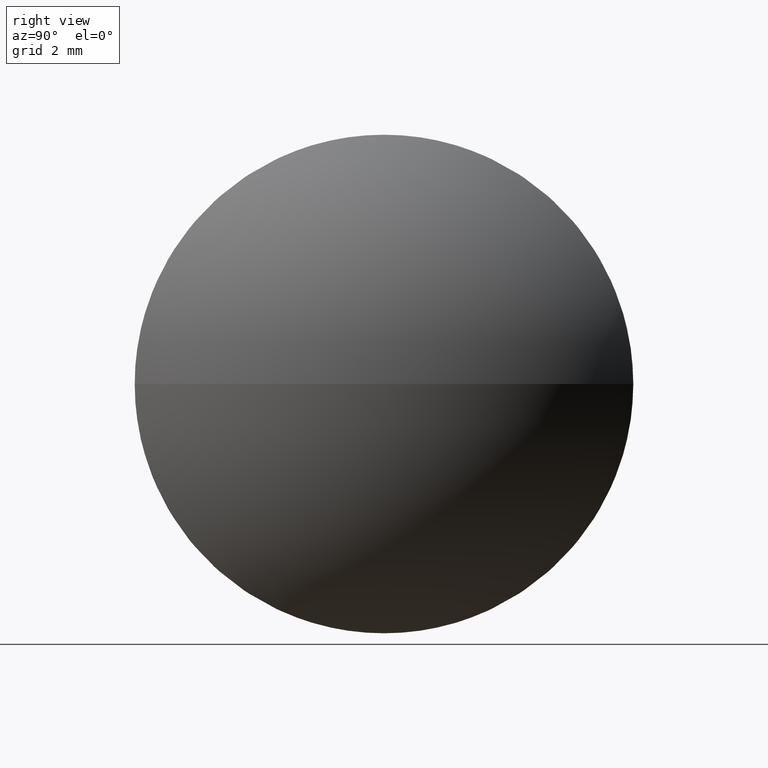
[diagram: clean part render]
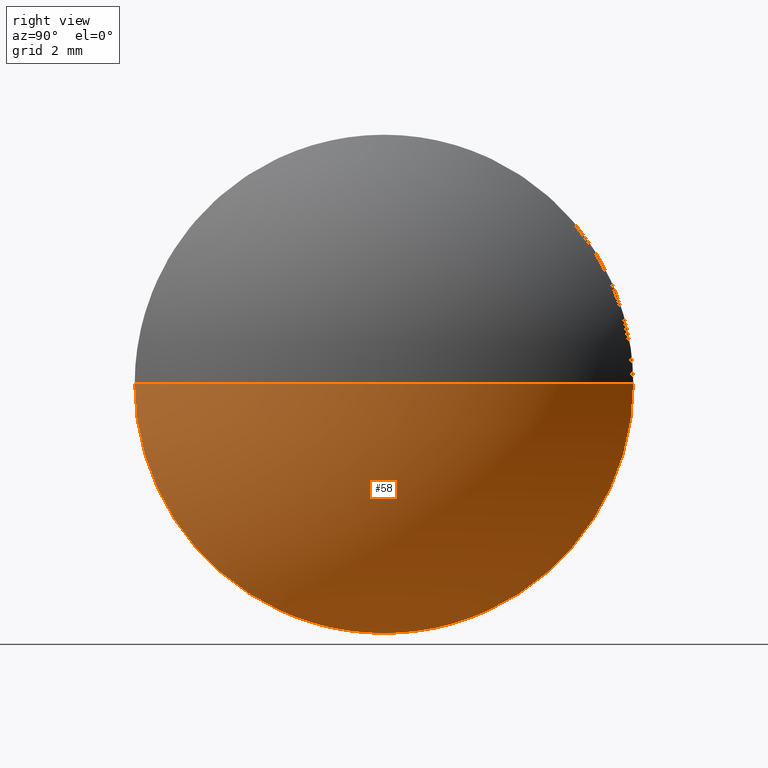
[diagram: same view with one face highlighted and labeled with its STEP entity id]
A machine part, right view. The second image highlights one B-rep face of the part: STEP entity #58.
In plain terms, the highlighted spherical surface has radius 6.4593 mm.
Its self-contained STEP definition (entity closure, byte-faithful):
#5 = SPHERICAL_SURFACE ( 'NONE', #159, 6.459261603375520800 ) ;
#8 = CARTESIAN_POINT ( 'NONE',  ( 537.4396273029952900, 129.3762019213367000, -6.123233995736764300E-016 ) ) ;
#10 = AXIS2_PLACEMENT_3D ( 'NONE', #184, #119, #65 ) ;
#11 = CIRCLE ( 'NONE', #147, 6.459261603375510100 ) ;
#12 = VERTEX_POINT ( 'NONE', #8 ) ;
#18 = DIRECTION ( 'NONE',  ( 0.0000000000000000000, 1.224646799147353200E-016, -1.000000000000000000 ) ) ;
#19 = VERTEX_POINT ( 'NONE', #22 ) ;
#22 = CARTESIAN_POINT ( 'NONE',  ( 537.4396273029952900, 139.3762019213367000, 0.0000000000000000000 ) ) ;
#23 = DIRECTION ( 'NONE',  ( 0.0000000000000000000, 1.000000000000000000, 0.0000000000000000000 ) ) ;
#28 = CIRCLE ( 'NONE', #10, 6.459261603375510100 ) ;
#33 = ORIENTED_EDGE ( 'NONE', *, *, #61, .F. ) ;
#43 = CARTESIAN_POINT ( 'NONE',  ( 537.4396273029952900, 134.3762019213367000, 0.0000000000000000000 ) ) ;
#44 = DIRECTION ( 'NONE',  ( -1.000000000000000000, -0.0000000000000000000, -0.0000000000000000000 ) ) ;
#45 = EDGE_CURVE ( 'NONE', #19, #139, #186, .T. ) ;
#58 = ADVANCED_FACE ( 'NONE', ( #70 ), #5, .T. ) ;
#60 = EDGE_LOOP ( 'NONE', ( #99, #146, #33, #77 ) ) ;
#61 = EDGE_CURVE ( 'NONE', #139, #12, #106, .T. ) ;
#65 = DIRECTION ( 'NONE',  ( 1.000000000000000000, 0.0000000000000000000, 0.0000000000000000000 ) ) ;
#70 = FACE_OUTER_BOUND ( 'NONE', #60, .T. ) ;
#77 = ORIENTED_EDGE ( 'NONE', *, *, #45, .F. ) ;
#80 = DIRECTION ( 'NONE',  ( 0.0000000000000000000, 1.000000000000000000, 1.224646799147355200E-016 ) ) ;
#83 = AXIS2_PLACEMENT_3D ( 'NONE', #43, #44, #91 ) ;
#84 = DIRECTION ( 'NONE',  ( -1.000000000000000000, -0.0000000000000000000, -0.0000000000000000000 ) ) ;
#91 = DIRECTION ( 'NONE',  ( 0.0000000000000000000, 0.0000000000000000000, 1.000000000000000000 ) ) ;
#92 = AXIS2_PLACEMENT_3D ( 'NONE', #140, #84, #167 ) ;
#99 = ORIENTED_EDGE ( 'NONE', *, *, #104, .F. ) ;
#104 = EDGE_CURVE ( 'NONE', #122, #19, #28, .T. ) ;
#106 = CIRCLE ( 'NONE', #83, 5.000000000000004400 ) ;
#119 = DIRECTION ( 'NONE',  ( -0.0000000000000000000, 0.0000000000000000000, 1.000000000000000000 ) ) ;
#122 = VERTEX_POINT ( 'NONE', #183 ) ;
#134 = EDGE_CURVE ( 'NONE', #122, #12, #11, .T. ) ;
#139 = VERTEX_POINT ( 'NONE', #152 ) ;
#140 = CARTESIAN_POINT ( 'NONE',  ( 537.4396273029952900, 134.3762019213367000, 0.0000000000000000000 ) ) ;
#144 = CARTESIAN_POINT ( 'NONE',  ( 533.3503656996198300, 134.3762019213367000, 0.0000000000000000000 ) ) ;
#146 = ORIENTED_EDGE ( 'NONE', *, *, #134, .T. ) ;
#147 = AXIS2_PLACEMENT_3D ( 'NONE', #163, #18, #80 ) ;
#152 = CARTESIAN_POINT ( 'NONE',  ( 537.4396273029952900, 134.3762019213367000, -5.000000000000004400 ) ) ;
#159 = AXIS2_PLACEMENT_3D ( 'NONE', #144, #169, #23 ) ;
#163 = CARTESIAN_POINT ( 'NONE',  ( 533.3503656996198300, 134.3762019213367000, 0.0000000000000000000 ) ) ;
#167 = DIRECTION ( 'NONE',  ( 0.0000000000000000000, 0.0000000000000000000, 1.000000000000000000 ) ) ;
#169 = DIRECTION ( 'NONE',  ( -0.0000000000000000000, 0.0000000000000000000, -1.000000000000000000 ) ) ;
#183 = CARTESIAN_POINT ( 'NONE',  ( 539.8096273029953000, 134.3762019213367000, 0.0000000000000000000 ) ) ;
#184 = CARTESIAN_POINT ( 'NONE',  ( 533.3503656996198300, 134.3762019213367000, 0.0000000000000000000 ) ) ;
#186 = CIRCLE ( 'NONE', #92, 5.000000000000004400 ) ;